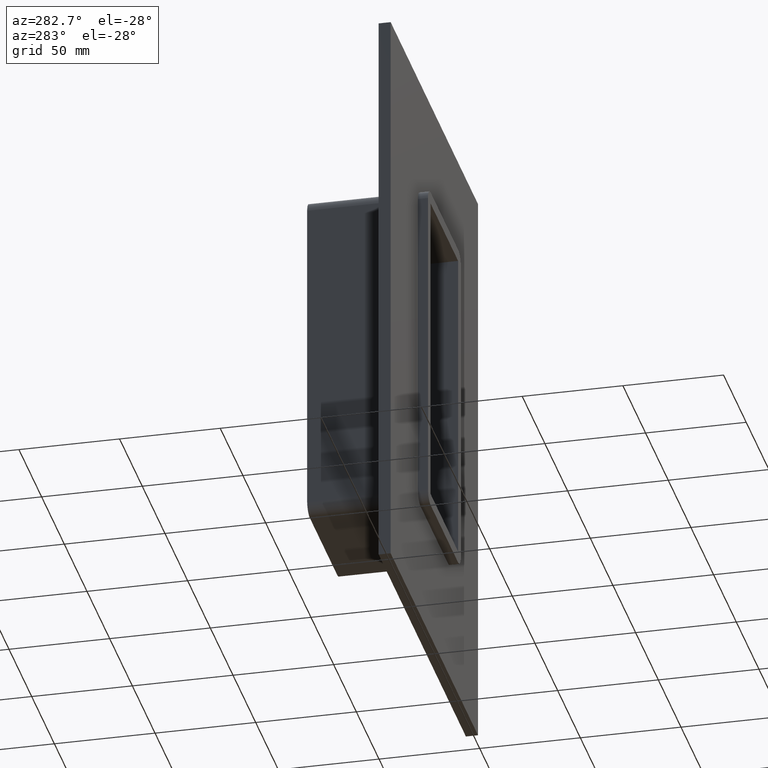
[diagram: clean part render]
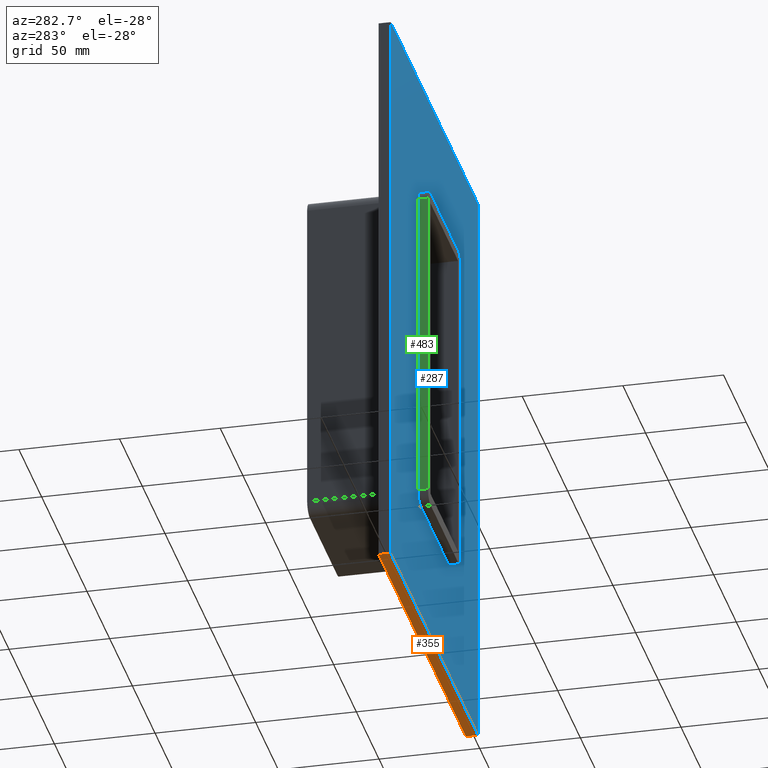
[diagram: same view with three faces highlighted in distinct colors, each labeled with its STEP entity id]
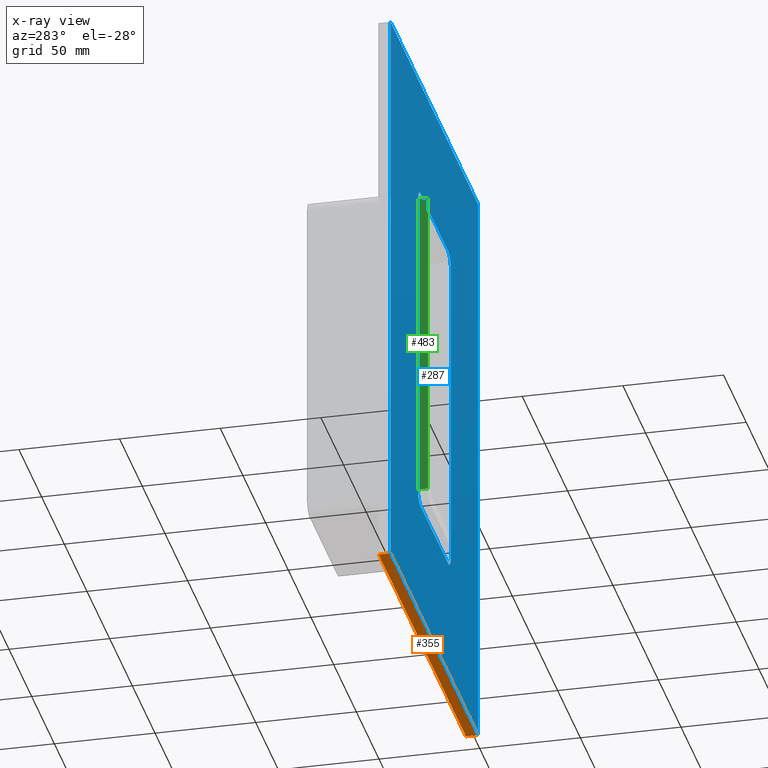
[diagram: x-ray of the same camera — body ghosted, the three highlighted faces saturated]
A machine part, auxiliary view with three faces highlighted in distinct colors.
The next image is the same camera in x-ray (body ghosted, the three faces saturated) — at least one of them is partly hidden behind the body in this view.
Their STEP definitions:

[orange] entity #355 — the highlighted planar face has unit normal (0, 0, -1).
#73=CARTESIAN_POINT('',(96.25,6.000000000000001,-145.75));
#74=VERTEX_POINT('',#73);
#75=CARTESIAN_POINT('',(-96.25,6.000000000000001,-145.75));
#76=VERTEX_POINT('',#75);
#77=CARTESIAN_POINT('',(96.25,6.000000000000001,-145.75));
#78=DIRECTION('',(-1.0,0.0,0.0));
#79=VECTOR('',#78,192.5);
#80=LINE('',#77,#79);
#81=EDGE_CURVE('',#74,#76,#80,.T.);
#183=CARTESIAN_POINT('',(96.25,0.0,-145.75));
#184=VERTEX_POINT('',#183);
#185=CARTESIAN_POINT('',(-96.25,0.0,-145.75));
#186=VERTEX_POINT('',#185);
#187=CARTESIAN_POINT('',(96.25,0.0,-145.75));
#188=DIRECTION('',(-1.0,0.0,0.0));
#189=VECTOR('',#188,192.5);
#190=LINE('',#187,#189);
#191=EDGE_CURVE('',#184,#186,#190,.T.);
#294=CARTESIAN_POINT('',(96.25,0.0,-145.75));
#295=DIRECTION('',(0.0,1.0,0.0));
#296=VECTOR('',#295,6.000000000000001);
#297=LINE('',#294,#296);
#298=EDGE_CURVE('',#184,#74,#297,.T.);
#335=CARTESIAN_POINT('',(-96.25,0.0,-145.75));
#336=DIRECTION('',(0.0,1.0,0.0));
#337=VECTOR('',#336,6.000000000000001);
#338=LINE('',#335,#337);
#339=EDGE_CURVE('',#186,#76,#338,.T.);
#344=CARTESIAN_POINT('',(96.25,0.0,-145.75));
#345=DIRECTION('',(0.0,0.0,-1.0));
#346=DIRECTION('',(-1.0,0.0,0.0));
#347=AXIS2_PLACEMENT_3D('',#344,#345,#346);
#348=PLANE('',#347);
#349=ORIENTED_EDGE('',*,*,#191,.T.);
#350=ORIENTED_EDGE('',*,*,#339,.T.);
#351=ORIENTED_EDGE('',*,*,#81,.F.);
#352=ORIENTED_EDGE('',*,*,#298,.F.);
#353=EDGE_LOOP('',(#349,#350,#351,#352));
#354=FACE_OUTER_BOUND('',#353,.T.);
#355=ADVANCED_FACE('',(#354),#348,.T.);

[blue] entity #287 — the highlighted planar face has unit normal (0, 1, 0).
#178=CARTESIAN_POINT('',(0.0,0.0,0.0));
#179=DIRECTION('',(0.0,1.0,0.0));
#180=DIRECTION('',(0.0,0.0,1.0));
#181=AXIS2_PLACEMENT_3D('',#178,#179,#180);
#182=PLANE('',#181);
#183=CARTESIAN_POINT('',(96.25,0.0,-145.75));
#184=VERTEX_POINT('',#183);
#185=CARTESIAN_POINT('',(-96.25,0.0,-145.75));
#186=VERTEX_POINT('',#185);
#187=CARTESIAN_POINT('',(96.25,0.0,-145.75));
#188=DIRECTION('',(-1.0,0.0,0.0));
#189=VECTOR('',#188,192.5);
#190=LINE('',#187,#189);
#191=EDGE_CURVE('',#184,#186,#190,.T.);
#192=ORIENTED_EDGE('',*,*,#191,.F.);
#193=CARTESIAN_POINT('',(96.25,0.0,145.75));
#194=VERTEX_POINT('',#193);
#195=CARTESIAN_POINT('',(96.25,0.0,145.75));
#196=DIRECTION('',(0.0,0.0,-1.0));
#197=VECTOR('',#196,291.5);
#198=LINE('',#195,#197);
#199=EDGE_CURVE('',#194,#184,#198,.T.);
#200=ORIENTED_EDGE('',*,*,#199,.F.);
#201=CARTESIAN_POINT('',(-96.25,0.0,145.75));
#202=VERTEX_POINT('',#201);
#203=CARTESIAN_POINT('',(-96.25,0.0,145.75));
#204=DIRECTION('',(1.0,0.0,0.0));
#205=VECTOR('',#204,192.5);
#206=LINE('',#203,#205);
#207=EDGE_CURVE('',#202,#194,#206,.T.);
#208=ORIENTED_EDGE('',*,*,#207,.F.);
#209=CARTESIAN_POINT('',(-96.25,0.0,-145.75));
#210=DIRECTION('',(0.0,0.0,1.0));
#211=VECTOR('',#210,291.5);
#212=LINE('',#209,#211);
#213=EDGE_CURVE('',#186,#202,#212,.T.);
#214=ORIENTED_EDGE('',*,*,#213,.F.);
#215=EDGE_LOOP('',(#192,#200,#208,#214));
#216=FACE_OUTER_BOUND('',#215,.T.);
#217=CARTESIAN_POINT('',(36.25,0.0,79.750000000000014));
#218=VERTEX_POINT('',#217);
#219=CARTESIAN_POINT('',(30.249999999999986,0.0,85.75));
#220=VERTEX_POINT('',#219);
#221=CARTESIAN_POINT('',(30.249999999999986,0.0,79.750000000000014));
#222=DIRECTION('',(0.0,-1.0,0.0));
#223=DIRECTION('',(0.0,0.0,1.0));
#224=AXIS2_PLACEMENT_3D('',#221,#222,#223);
#225=CIRCLE('',#224,6.000000000000014);
#226=EDGE_CURVE('',#218,#220,#225,.T.);
#227=ORIENTED_EDGE('',*,*,#226,.F.);
#228=CARTESIAN_POINT('',(36.25,0.0,-79.750000000000057));
#229=VERTEX_POINT('',#228);
#230=CARTESIAN_POINT('',(36.25,0.0,-79.750000000000057));
#231=DIRECTION('',(0.0,0.0,1.0));
#232=VECTOR('',#231,159.50000000000006);
#233=LINE('',#230,#232);
#234=EDGE_CURVE('',#229,#218,#233,.T.);
#235=ORIENTED_EDGE('',*,*,#234,.F.);
#236=CARTESIAN_POINT('',(30.249999999999986,0.0,-85.750000000000014));
#237=VERTEX_POINT('',#236);
#238=CARTESIAN_POINT('',(30.249999999999986,0.0,-79.750000000000014));
#239=DIRECTION('',(0.0,-1.0,0.0));
#240=DIRECTION('',(1.0,0.0,0.0));
#241=AXIS2_PLACEMENT_3D('',#238,#239,#240);
#242=CIRCLE('',#241,6.000000000000014);
#243=EDGE_CURVE('',#237,#229,#242,.T.);
#244=ORIENTED_EDGE('',*,*,#243,.F.);
#245=CARTESIAN_POINT('',(-30.249999999999986,0.0,-85.750000000000014));
#246=VERTEX_POINT('',#245);
#247=CARTESIAN_POINT('',(-30.249999999999986,0.0,-85.750000000000014));
#248=DIRECTION('',(1.0,0.0,0.0));
#249=VECTOR('',#248,60.499999999999972);
#250=LINE('',#247,#249);
#251=EDGE_CURVE('',#246,#237,#250,.T.);
#252=ORIENTED_EDGE('',*,*,#251,.F.);
#253=CARTESIAN_POINT('',(-36.25,0.0,-79.750000000000057));
#254=VERTEX_POINT('',#253);
#255=CARTESIAN_POINT('',(-30.249999999999986,0.0,-79.750000000000014));
#256=DIRECTION('',(0.0,-1.0,0.0));
#257=DIRECTION('',(0.0,0.0,-1.0));
#258=AXIS2_PLACEMENT_3D('',#255,#256,#257);
#259=CIRCLE('',#258,6.000000000000014);
#260=EDGE_CURVE('',#254,#246,#259,.T.);
#261=ORIENTED_EDGE('',*,*,#260,.F.);
#262=CARTESIAN_POINT('',(-36.25,0.0,79.750000000000014));
#263=VERTEX_POINT('',#262);
#264=CARTESIAN_POINT('',(-36.25,0.0,79.750000000000014));
#265=DIRECTION('',(0.0,0.0,-1.0));
#266=VECTOR('',#265,159.50000000000006);
#267=LINE('',#264,#266);
#268=EDGE_CURVE('',#263,#254,#267,.T.);
#269=ORIENTED_EDGE('',*,*,#268,.F.);
#270=CARTESIAN_POINT('',(-30.249999999999986,0.0,85.75));
#271=VERTEX_POINT('',#270);
#272=CARTESIAN_POINT('',(-30.249999999999986,0.0,79.750000000000014));
#273=DIRECTION('',(0.0,-1.0,0.0));
#274=DIRECTION('',(-1.0,0.0,0.0));
#275=AXIS2_PLACEMENT_3D('',#272,#273,#274);
#276=CIRCLE('',#275,6.000000000000014);
#277=EDGE_CURVE('',#271,#263,#276,.T.);
#278=ORIENTED_EDGE('',*,*,#277,.F.);
#279=CARTESIAN_POINT('',(30.249999999999986,0.0,85.75));
#280=DIRECTION('',(-1.0,0.0,0.0));
#281=VECTOR('',#280,60.499999999999972);
#282=LINE('',#279,#281);
#283=EDGE_CURVE('',#220,#271,#282,.T.);
#284=ORIENTED_EDGE('',*,*,#283,.F.);
#285=EDGE_LOOP('',(#227,#235,#244,#252,#261,#269,#278,#284));
#286=FACE_BOUND('',#285,.T.);
#287=ADVANCED_FACE('',(#216,#286),#182,.F.);

[green] entity #483 — the highlighted planar face has unit normal (-1, 0, 0).
#253=CARTESIAN_POINT('',(-36.25,0.0,-79.750000000000057));
#254=VERTEX_POINT('',#253);
#262=CARTESIAN_POINT('',(-36.25,0.0,79.750000000000014));
#263=VERTEX_POINT('',#262);
#264=CARTESIAN_POINT('',(-36.25,0.0,79.750000000000014));
#265=DIRECTION('',(0.0,0.0,-1.0));
#266=VECTOR('',#265,159.50000000000006);
#267=LINE('',#264,#266);
#268=EDGE_CURVE('',#263,#254,#267,.T.);
#410=CARTESIAN_POINT('',(-36.25,-5.0,-79.750000000000057));
#411=VERTEX_POINT('',#410);
#419=CARTESIAN_POINT('',(-36.25,-5.0,-79.750000000000057));
#420=DIRECTION('',(0.0,1.0,0.0));
#421=VECTOR('',#420,5.0);
#422=LINE('',#419,#421);
#423=EDGE_CURVE('',#411,#254,#422,.T.);
#460=CARTESIAN_POINT('',(-36.25,0.0,-79.750000000000057));
#461=DIRECTION('',(-1.0,0.0,0.0));
#462=DIRECTION('',(0.0,0.0,1.0));
#463=AXIS2_PLACEMENT_3D('',#460,#461,#462);
#464=PLANE('',#463);
#465=ORIENTED_EDGE('',*,*,#268,.T.);
#466=ORIENTED_EDGE('',*,*,#423,.F.);
#467=CARTESIAN_POINT('',(-36.25,-5.0,79.750000000000014));
#468=VERTEX_POINT('',#467);
#469=CARTESIAN_POINT('',(-36.25,-5.0,79.75));
#470=DIRECTION('',(0.0,0.0,-1.0));
#471=VECTOR('',#470,159.50000000000006);
#472=LINE('',#469,#471);
#473=EDGE_CURVE('',#468,#411,#472,.T.);
#474=ORIENTED_EDGE('',*,*,#473,.F.);
#475=CARTESIAN_POINT('',(-36.25,-5.0,79.750000000000014));
#476=DIRECTION('',(0.0,1.0,0.0));
#477=VECTOR('',#476,5.0);
#478=LINE('',#475,#477);
#479=EDGE_CURVE('',#468,#263,#478,.T.);
#480=ORIENTED_EDGE('',*,*,#479,.T.);
#481=EDGE_LOOP('',(#465,#466,#474,#480));
#482=FACE_OUTER_BOUND('',#481,.T.);
#483=ADVANCED_FACE('',(#482),#464,.T.);